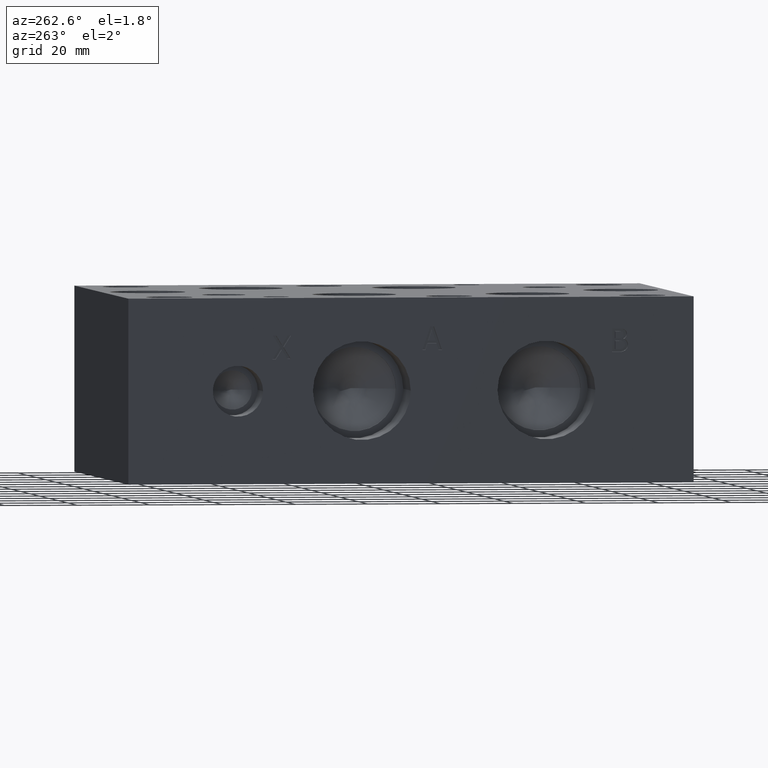
[diagram: clean part render]
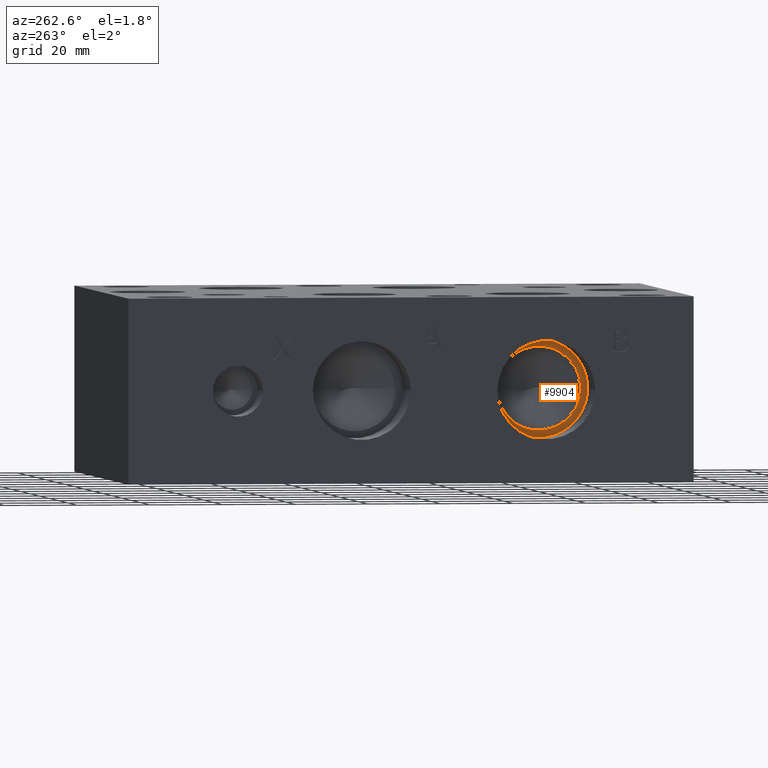
[diagram: same view with one face highlighted and labeled with its STEP entity id]
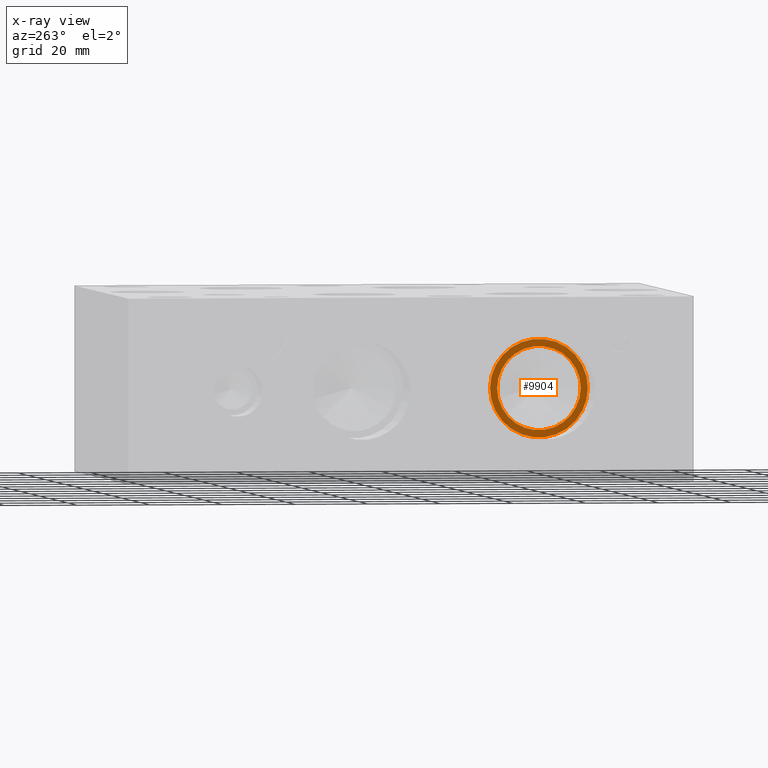
[diagram: x-ray of the same camera — body ghosted, the highlighted face saturated]
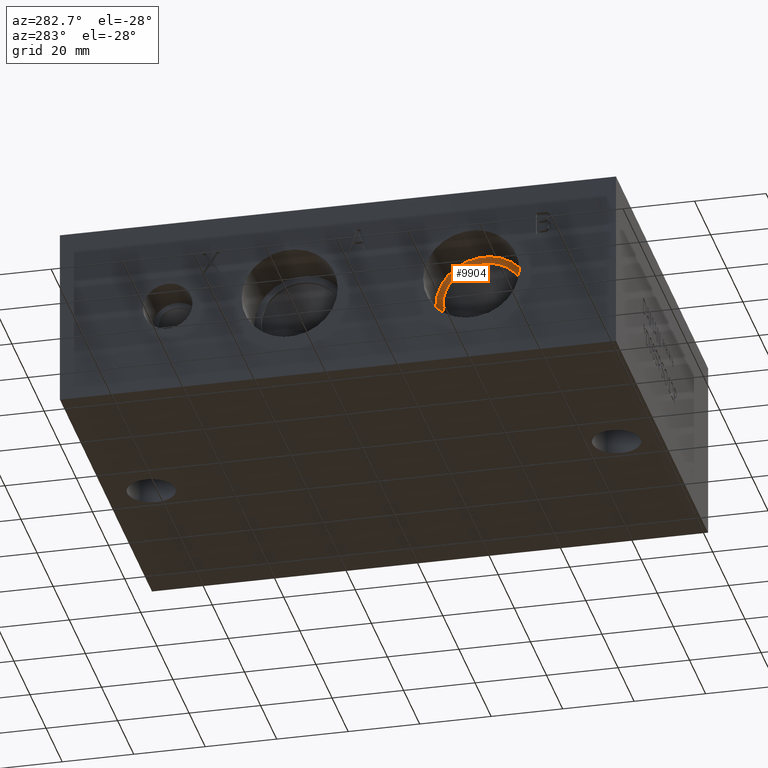
[diagram: same view with one face highlighted and labeled with its STEP entity id]
A machine part, auxiliary view. The second image highlights one B-rep face of the part: STEP entity #9904.
The next image is the same camera in x-ray: the body ghosted, the highlighted face saturated — about 0% of this face is hidden behind the body in this view.
A second angle (auxiliary view) of the same face is appended — the face is thin or edge-on in the first view.
In plain terms, the highlighted planar face has unit normal (-1, 0, 0).
Its self-contained STEP definition (entity closure, byte-faithful):
#104=CIRCLE('',#10316,13.462);
#105=CIRCLE('',#10317,13.462);
#106=CIRCLE('',#10318,11.5062);
#248=FACE_BOUND('',#1709,.T.);
#1152=FACE_OUTER_BOUND('',#1708,.T.);
#1708=EDGE_LOOP('',(#8428,#8429));
#1709=EDGE_LOOP('',(#8430));
#4526=VERTEX_POINT('',#16766);
#4527=VERTEX_POINT('',#16767);
#4528=VERTEX_POINT('',#16770);
#5862=EDGE_CURVE('',#4526,#4527,#104,.T.);
#5863=EDGE_CURVE('',#4527,#4526,#105,.T.);
#5864=EDGE_CURVE('',#4528,#4528,#106,.T.);
#8428=ORIENTED_EDGE('',*,*,#5862,.T.);
#8429=ORIENTED_EDGE('',*,*,#5863,.T.);
#8430=ORIENTED_EDGE('',*,*,#5864,.F.);
#9024=PLANE('',#10315);
#9904=ADVANCED_FACE('',(#1152,#248),#9024,.T.);
#10315=AXIS2_PLACEMENT_3D('',#16765,#12053,#12054);
#10316=AXIS2_PLACEMENT_3D('',#16768,#12055,#12056);
#10317=AXIS2_PLACEMENT_3D('',#16769,#12057,#12058);
#10318=AXIS2_PLACEMENT_3D('',#16771,#12059,#12060);
#12053=DIRECTION('center_axis',(-1.,0.,0.));
#12054=DIRECTION('ref_axis',(0.,1.,0.));
#12055=DIRECTION('center_axis',(-1.,0.,0.));
#12056=DIRECTION('ref_axis',(0.,1.,0.));
#12057=DIRECTION('center_axis',(-1.,0.,0.));
#12058=DIRECTION('ref_axis',(0.,1.,0.));
#12059=DIRECTION('center_axis',(-1.,0.,0.));
#12060=DIRECTION('ref_axis',(0.,1.,0.));
#16765=CARTESIAN_POINT('Origin',(15.8496,40.513,25.4));
#16766=CARTESIAN_POINT('',(15.8496,53.975,25.4));
#16767=CARTESIAN_POINT('',(15.8496,27.051,25.4));
#16768=CARTESIAN_POINT('Origin',(15.8496,40.513,25.4));
#16769=CARTESIAN_POINT('Origin',(15.8496,40.513,25.4));
#16770=CARTESIAN_POINT('',(15.8496,29.0068,25.4));
#16771=CARTESIAN_POINT('Origin',(15.8496,40.513,25.4));